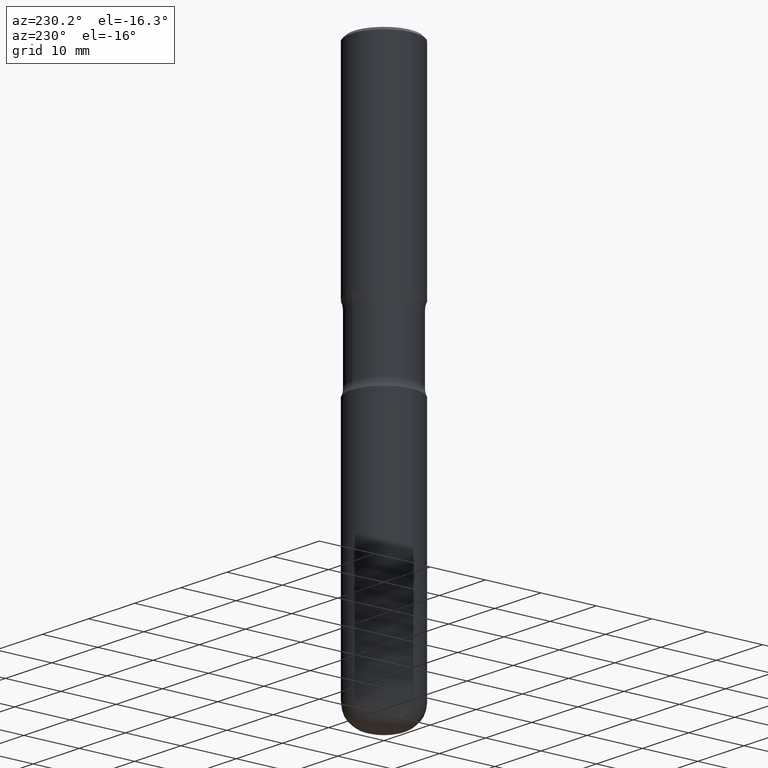
[diagram: clean part render]
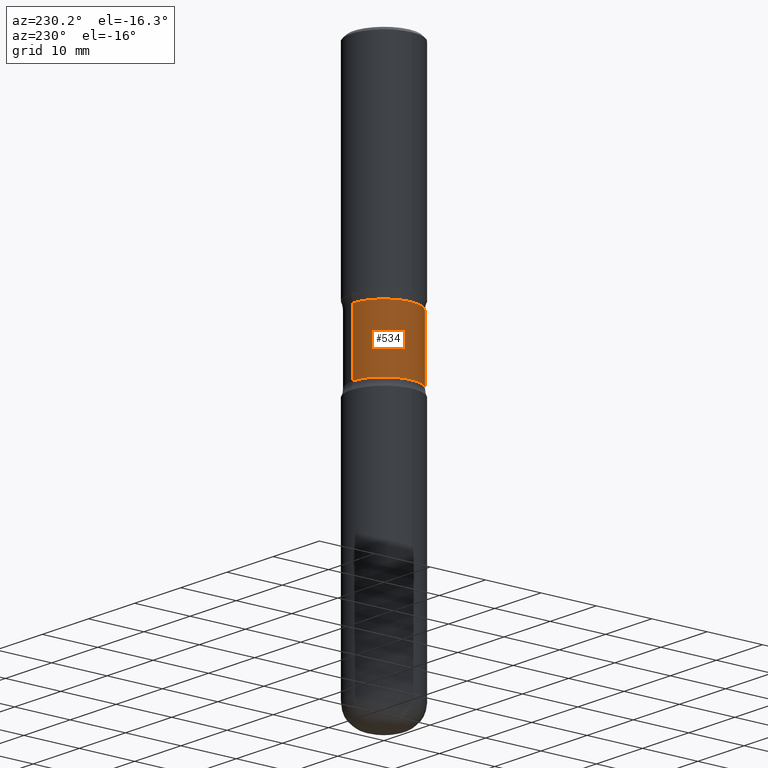
[diagram: same view with one face highlighted and labeled with its STEP entity id]
A machine part, auxiliary view. The second image highlights one B-rep face of the part: STEP entity #534.
In plain terms, the highlighted cylindrical surface (partial cylindrical patch) has radius 5.6896 mm, axis along (0, -0, -1).
Its self-contained STEP definition (entity closure, byte-faithful):
#7 = EDGE_CURVE ( 'NONE', #130, #552, #165, .T. ) ;
#8 = VERTEX_POINT ( 'NONE', #382 ) ;
#37 = VECTOR ( 'NONE', #121, 39.37007874015748143 ) ;
#44 = FACE_OUTER_BOUND ( 'NONE', #129, .T. ) ;
#64 = ORIENTED_EDGE ( 'NONE', *, *, #7, .F. ) ;
#121 = DIRECTION ( 'NONE',  ( 2.477013798679166639E-29, -3.446307114162222138E-15, -1.000000000000000000 ) ) ;
#129 = EDGE_LOOP ( 'NONE', ( #64, #380, #523, #166 ) ) ;
#130 = VERTEX_POINT ( 'NONE', #435 ) ;
#147 = AXIS2_PLACEMENT_3D ( 'NONE', #351, #442, #398 ) ;
#150 = DIRECTION ( 'NONE',  ( 6.982962677686265922E-15, 1.000000000000000000, -3.658724991514636908E-15 ) ) ;
#153 = DIRECTION ( 'NONE',  ( 6.982962677686265922E-15, 1.000000000000000000, -2.439149994343091666E-15 ) ) ;
#154 = EDGE_CURVE ( 'NONE', #130, #428, #557, .T. ) ;
#165 = LINE ( 'NONE', #235, #37 ) ;
#166 = ORIENTED_EDGE ( 'NONE', *, *, #331, .F. ) ;
#192 = AXIS2_PLACEMENT_3D ( 'NONE', #423, #465, #153 ) ;
#198 = DIRECTION ( 'NONE',  ( 2.477013798679166639E-29, -3.446307114162222138E-15, -1.000000000000000000 ) ) ;
#217 = VECTOR ( 'NONE', #198, 39.37007874015748143 ) ;
#235 = CARTESIAN_POINT ( 'NONE',  ( -1.536751551500726315E-15, -0.2240000000000137159, -3.937000000000000277 ) ) ;
#244 = CARTESIAN_POINT ( 'NONE',  ( 1.564183639801820828E-15, 0.2239999999999864044, -3.937000000000001165 ) ) ;
#277 = DIRECTION ( 'NONE',  ( 2.477013798679166358E-29, -3.446307114162222532E-15, -1.000000000000000000 ) ) ;
#283 = AXIS2_PLACEMENT_3D ( 'NONE', #404, #277, #150 ) ;
#331 = EDGE_CURVE ( 'NONE', #552, #8, #395, .T. ) ;
#351 = CARTESIAN_POINT ( 'NONE',  ( 3.774699386512239440E-29, -5.434127178275053399E-15, -1.549962417324142638 ) ) ;
#379 = CYLINDRICAL_SURFACE ( 'NONE', #192, 0.2240000000000000602 ) ;
#380 = ORIENTED_EDGE ( 'NONE', *, *, #154, .T. ) ;
#381 = CARTESIAN_POINT ( 'NONE',  ( 1.564183639801761664E-15, 0.2239999999999945923, -1.549962417324143304 ) ) ;
#382 = CARTESIAN_POINT ( 'NONE',  ( 1.564183639801773102E-15, 0.2239999999999931213, -1.993337582675859698 ) ) ;
#395 = CIRCLE ( 'NONE', #283, 0.2240000000000000879 ) ;
#398 = DIRECTION ( 'NONE',  ( 6.982962677686265922E-15, 1.000000000000000000, -3.658724991514637697E-15 ) ) ;
#404 = CARTESIAN_POINT ( 'NONE',  ( 4.872945789080098488E-29, -6.962134164869526576E-15, -1.993337582675859032 ) ) ;
#423 = CARTESIAN_POINT ( 'NONE',  ( 9.687424416766102159E-29, -1.366059178122345804E-14, -3.937000000000000721 ) ) ;
#428 = VERTEX_POINT ( 'NONE', #381 ) ;
#435 = CARTESIAN_POINT ( 'NONE',  ( -1.578600589287193318E-15, -0.2240000000000054448, -1.549962417324141750 ) ) ;
#442 = DIRECTION ( 'NONE',  ( 2.477013798679166358E-29, -3.446307114162222532E-15, -1.000000000000000000 ) ) ;
#443 = EDGE_CURVE ( 'NONE', #428, #8, #513, .T. ) ;
#465 = DIRECTION ( 'NONE',  ( 2.477013798679166358E-29, -3.446307114162222532E-15, -1.000000000000000000 ) ) ;
#479 = CARTESIAN_POINT ( 'NONE',  ( -1.578600589287180697E-15, -0.2240000000000070546, -1.993337582675858144 ) ) ;
#513 = LINE ( 'NONE', #244, #217 ) ;
#523 = ORIENTED_EDGE ( 'NONE', *, *, #443, .T. ) ;
#534 = ADVANCED_FACE ( 'NONE', ( #44 ), #379, .T. ) ;
#552 = VERTEX_POINT ( 'NONE', #479 ) ;
#557 = CIRCLE ( 'NONE', #147, 0.2240000000000000324 ) ;